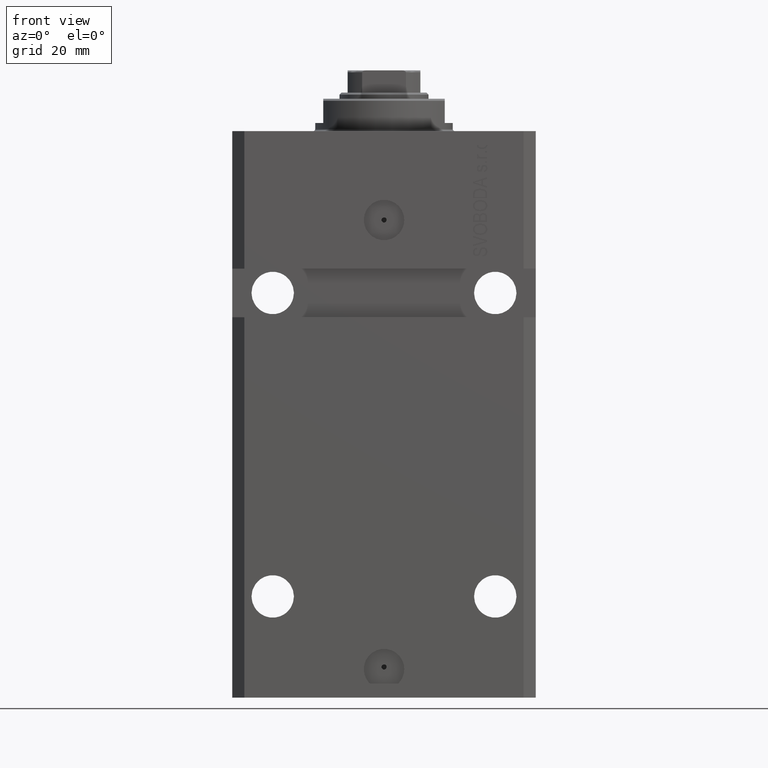
[diagram: clean part render]
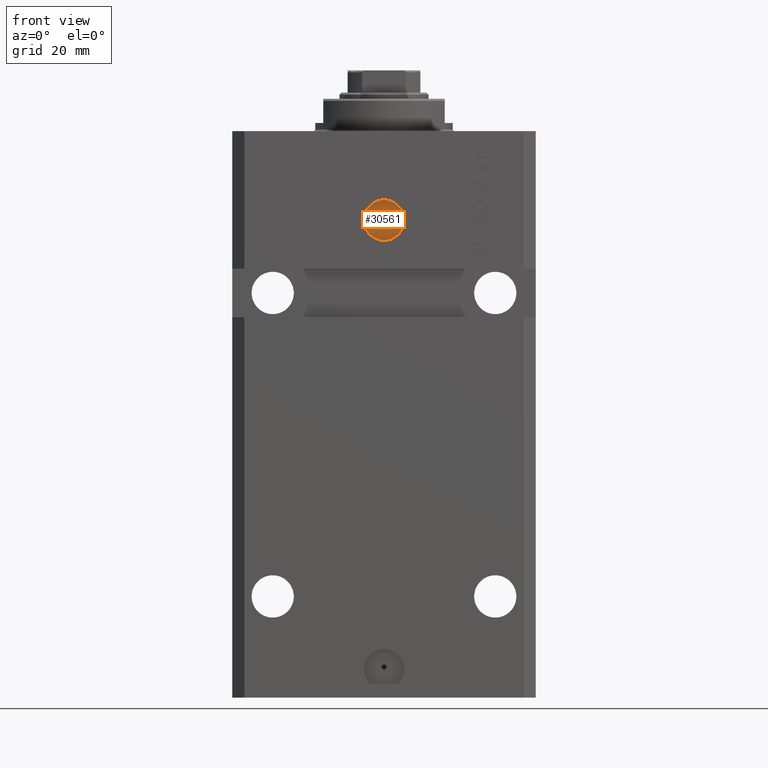
[diagram: same view with one face highlighted and labeled with its STEP entity id]
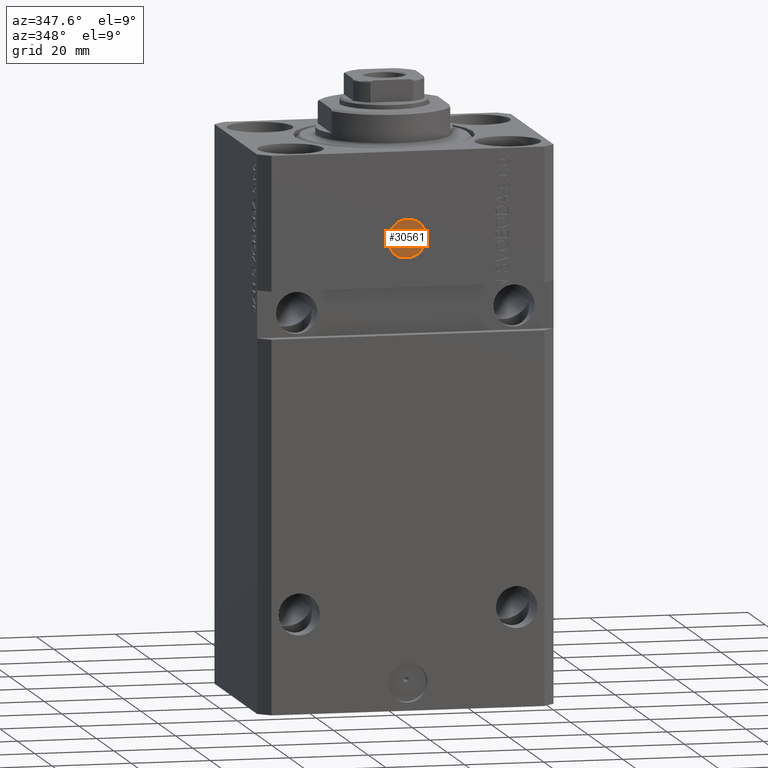
[diagram: same view with one face highlighted and labeled with its STEP entity id]
A machine part, front view. The second image highlights one B-rep face of the part: STEP entity #30561.
A second angle (auxiliary view) of the same face is appended — the face is thin or edge-on in the first view.
In plain terms, the highlighted planar face has unit normal (0, -1, 0).
Its self-contained STEP definition (entity closure, byte-faithful):
#838 = DIRECTION ( 'NONE',  ( 1.000000000000000000, 0.000000000000000000, 0.000000000000000000 ) ) ;
#2988 = CARTESIAN_POINT ( 'NONE',  ( -2.234559053800897838E-16, -25.59999999999999787, -22.00000000000000000 ) ) ;
#3507 = AXIS2_PLACEMENT_3D ( 'NONE', #2988, #3659, #17210 ) ;
#3659 = DIRECTION ( 'NONE',  ( 1.176083712526788232E-16, -1.000000000000000000, 0.000000000000000000 ) ) ;
#4236 = DIRECTION ( 'NONE',  ( 1.176083712526788232E-16, -1.000000000000000000, 0.000000000000000000 ) ) ;
#6359 = PLANE ( 'NONE',  #3507 ) ;
#7144 = VERTEX_POINT ( 'NONE', #35940 ) ;
#7196 = CIRCLE ( 'NONE', #14433, 0.6250000000000002220 ) ;
#8231 = EDGE_LOOP ( 'NONE', ( #25485, #13924 ) ) ;
#9374 = DIRECTION ( 'NONE',  ( 1.000000000000000000, 0.000000000000000000, 0.000000000000000000 ) ) ;
#9484 = AXIS2_PLACEMENT_3D ( 'NONE', #19012, #18793, #35952 ) ;
#10952 = CIRCLE ( 'NONE', #33908, 5.000000000000002665 ) ;
#11459 = DIRECTION ( 'NONE',  ( 1.000000000000000000, 0.000000000000000000, 0.000000000000000000 ) ) ;
#13924 = ORIENTED_EDGE ( 'NONE', *, *, #33475, .F. ) ;
#14433 = AXIS2_PLACEMENT_3D ( 'NONE', #30129, #40297, #9374 ) ;
#15104 = VERTEX_POINT ( 'NONE', #30158 ) ;
#16802 = VERTEX_POINT ( 'NONE', #44328 ) ;
#17210 = DIRECTION ( 'NONE',  ( 1.000000000000000000, 1.176083712526788232E-16, 0.000000000000000000 ) ) ;
#18793 = DIRECTION ( 'NONE',  ( 1.176083712526788232E-16, -1.000000000000000000, 0.000000000000000000 ) ) ;
#19012 = CARTESIAN_POINT ( 'NONE',  ( -2.234559053800897838E-16, -25.59999999999999787, -22.00000000000000000 ) ) ;
#20813 = FACE_OUTER_BOUND ( 'NONE', #31314, .T. ) ;
#23570 = CARTESIAN_POINT ( 'NONE',  ( 0.6250000000000032196, -25.59999999999999787, -22.00000000000000000 ) ) ;
#24740 = DIRECTION ( 'NONE',  ( 1.176083712526788232E-16, -1.000000000000000000, 0.000000000000000000 ) ) ;
#25485 = ORIENTED_EDGE ( 'NONE', *, *, #26936, .F. ) ;
#25634 = CARTESIAN_POINT ( 'NONE',  ( -2.234559053800897838E-16, -25.59999999999999787, -22.00000000000000000 ) ) ;
#26936 = EDGE_CURVE ( 'NONE', #32519, #7144, #43056, .T. ) ;
#30129 = CARTESIAN_POINT ( 'NONE',  ( 3.010774304068577164E-15, -25.59999999999999787, -22.00000000000000000 ) ) ;
#30158 = CARTESIAN_POINT ( 'NONE',  ( 5.000000000000002665, -25.59999999999999787, -22.00000000000000000 ) ) ;
#30561 = ADVANCED_FACE ( 'NONE', ( #37964, #20813 ), #6359, .T. ) ;
#31314 = EDGE_LOOP ( 'NONE', ( #32615, #38322 ) ) ;
#32229 = AXIS2_PLACEMENT_3D ( 'NONE', #42367, #4236, #11459 ) ;
#32519 = VERTEX_POINT ( 'NONE', #23570 ) ;
#32615 = ORIENTED_EDGE ( 'NONE', *, *, #38966, .T. ) ;
#33475 = EDGE_CURVE ( 'NONE', #7144, #32519, #7196, .T. ) ;
#33908 = AXIS2_PLACEMENT_3D ( 'NONE', #25634, #24740, #838 ) ;
#35940 = CARTESIAN_POINT ( 'NONE',  ( -0.6249999999999972244, -25.59999999999999787, -22.00000000000000000 ) ) ;
#35952 = DIRECTION ( 'NONE',  ( 1.000000000000000000, 0.000000000000000000, 0.000000000000000000 ) ) ;
#37964 = FACE_BOUND ( 'NONE', #8231, .T. ) ;
#38322 = ORIENTED_EDGE ( 'NONE', *, *, #41506, .T. ) ;
#38966 = EDGE_CURVE ( 'NONE', #15104, #16802, #10952, .T. ) ;
#40297 = DIRECTION ( 'NONE',  ( 1.176083712526788232E-16, -1.000000000000000000, 0.000000000000000000 ) ) ;
#41219 = CIRCLE ( 'NONE', #9484, 5.000000000000002665 ) ;
#41506 = EDGE_CURVE ( 'NONE', #16802, #15104, #41219, .T. ) ;
#42367 = CARTESIAN_POINT ( 'NONE',  ( 3.010774304068577164E-15, -25.59999999999999787, -22.00000000000000000 ) ) ;
#43056 = CIRCLE ( 'NONE', #32229, 0.6250000000000002220 ) ;
#44328 = CARTESIAN_POINT ( 'NONE',  ( -5.000000000000002665, -25.59999999999999787, -22.00000000000000000 ) ) ;